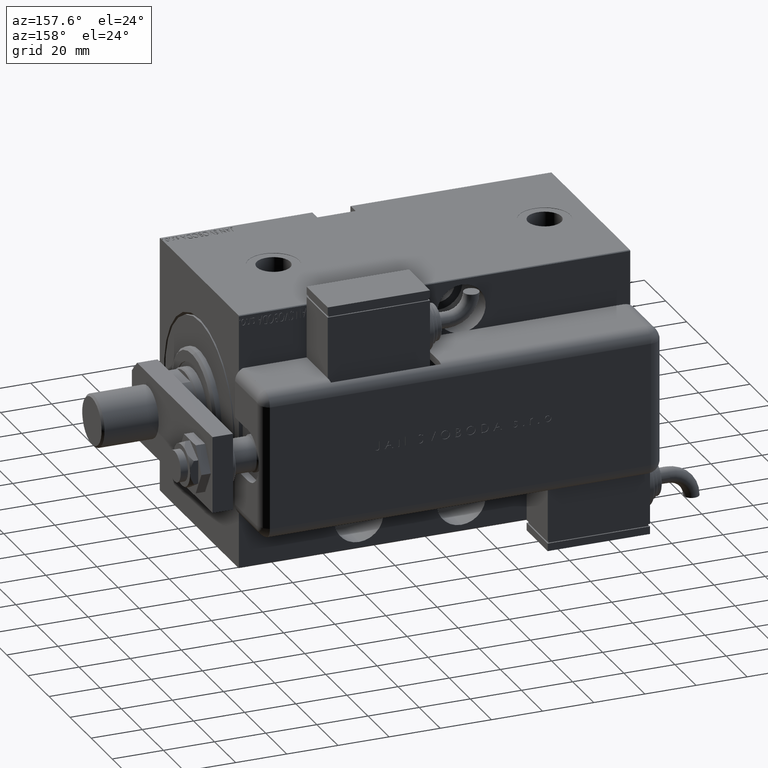
[diagram: clean part render]
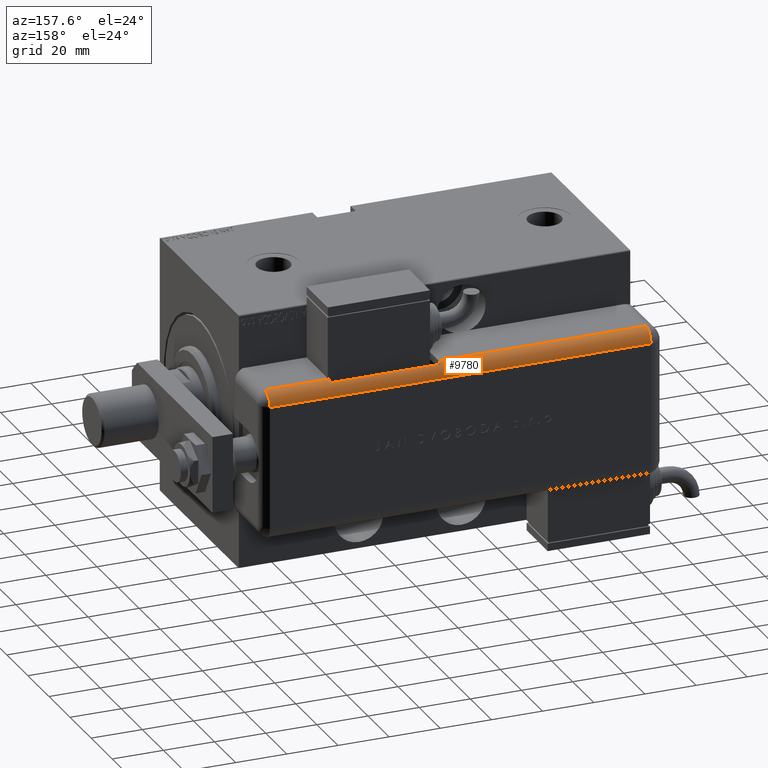
[diagram: same view with one face highlighted and labeled with its STEP entity id]
A machine part, auxiliary view. The second image highlights one B-rep face of the part: STEP entity #9780.
In plain terms, the highlighted cylindrical surface (edge-blend (fillet) strip) has radius 5 mm, axis along (-1, -0, -0).
Its self-contained STEP definition (entity closure, byte-faithful):
#481 = CARTESIAN_POINT ( 'NONE',  ( -28.99999999999999645, 20.79999999999998295, 154.0000000000000000 ) ) ;
#1604 = DIRECTION ( 'NONE',  ( -0.000000000000000000, -0.000000000000000000, 1.000000000000000000 ) ) ;
#1909 = AXIS2_PLACEMENT_3D ( 'NONE', #47829, #1604, #20132 ) ;
#2559 = VERTEX_POINT ( 'NONE', #39093 ) ;
#3241 = VERTEX_POINT ( 'NONE', #33324 ) ;
#3798 = VECTOR ( 'NONE', #35683, 1000.000000000000000 ) ;
#4779 = ORIENTED_EDGE ( 'NONE', *, *, #28059, .F. ) ;
#5673 = EDGE_CURVE ( 'NONE', #23327, #2559, #40421, .T. ) ;
#6009 = CARTESIAN_POINT ( 'NONE',  ( -23.99999999999999645, 25.79999999999998295, 154.0000000000000000 ) ) ;
#6892 = VECTOR ( 'NONE', #44728, 1000.000000000000000 ) ;
#7013 = CARTESIAN_POINT ( 'NONE',  ( -23.99999999999999645, 20.79999999999998295, 86.00000000000000000 ) ) ;
#9558 = ORIENTED_EDGE ( 'NONE', *, *, #22072, .F. ) ;
#9780 = ADVANCED_FACE ( 'NONE', ( #21237 ), #16986, .T. ) ;
#10504 = ORIENTED_EDGE ( 'NONE', *, *, #26009, .F. ) ;
#11647 = VERTEX_POINT ( 'NONE', #49249 ) ;
#11882 = LINE ( 'NONE', #49284, #6892 ) ;
#13418 = VERTEX_POINT ( 'NONE', #6009 ) ;
#13798 = CARTESIAN_POINT ( 'NONE',  ( -28.99999999999999645, 20.79999999999998295, 129.0000000000000000 ) ) ;
#14867 = DIRECTION ( 'NONE',  ( 0.000000000000000000, -0.000000000000000000, -1.000000000000000000 ) ) ;
#16242 = LINE ( 'NONE', #21691, #3798 ) ;
#16695 = DIRECTION ( 'NONE',  ( -1.000000000000000000, 0.000000000000000000, 0.000000000000000000 ) ) ;
#16986 = CYLINDRICAL_SURFACE ( 'NONE', #30897, 5.000000000000000888 ) ;
#18459 = CIRCLE ( 'NONE', #1909, 5.000000000000000888 ) ;
#20132 = DIRECTION ( 'NONE',  ( -1.000000000000000000, 0.000000000000000000, 0.000000000000000000 ) ) ;
#20419 = EDGE_CURVE ( 'NONE', #29492, #11647, #50693, .T. ) ;
#20654 = AXIS2_PLACEMENT_3D ( 'NONE', #37777, #51186, #47215 ) ;
#21237 = FACE_OUTER_BOUND ( 'NONE', #32540, .T. ) ;
#21691 = CARTESIAN_POINT ( 'NONE',  ( -28.99999999999999645, 20.79999999999998295, 154.0000000000000000 ) ) ;
#22072 = EDGE_CURVE ( 'NONE', #2559, #3241, #11882, .T. ) ;
#23327 = VERTEX_POINT ( 'NONE', #13798 ) ;
#23357 = VECTOR ( 'NONE', #36993, 1000.000000000000000 ) ;
#25207 = VECTOR ( 'NONE', #48099, 1000.000000000000000 ) ;
#26009 = EDGE_CURVE ( 'NONE', #13418, #44010, #46902, .T. ) ;
#26397 = CARTESIAN_POINT ( 'NONE',  ( -23.99999999999999645, 20.79999999999998295, 154.0000000000000000 ) ) ;
#27083 = ORIENTED_EDGE ( 'NONE', *, *, #44332, .F. ) ;
#28059 = EDGE_CURVE ( 'NONE', #3241, #29492, #28503, .T. ) ;
#28503 = CIRCLE ( 'NONE', #30446, 5.000000000000000888 ) ;
#29492 = VERTEX_POINT ( 'NONE', #31420 ) ;
#30446 = AXIS2_PLACEMENT_3D ( 'NONE', #7013, #43809, #58100 ) ;
#30897 = AXIS2_PLACEMENT_3D ( 'NONE', #26397, #39505, #16695 ) ;
#31420 = CARTESIAN_POINT ( 'NONE',  ( -28.99999999999999645, 20.79999999999998295, 86.00000000000000000 ) ) ;
#32540 = EDGE_LOOP ( 'NONE', ( #4779, #9558, #40702, #27083, #10504, #37336, #42366, #59232 ) ) ;
#33324 = CARTESIAN_POINT ( 'NONE',  ( -28.48998886412872267, 22.99999999999998934, 86.00000000000000000 ) ) ;
#35683 = DIRECTION ( 'NONE',  ( 0.000000000000000000, 0.000000000000000000, -1.000000000000000000 ) ) ;
#36993 = DIRECTION ( 'NONE',  ( 0.000000000000000000, 0.000000000000000000, -1.000000000000000000 ) ) ;
#37336 = ORIENTED_EDGE ( 'NONE', *, *, #45512, .F. ) ;
#37483 = AXIS2_PLACEMENT_3D ( 'NONE', #51384, #14867, #56528 ) ;
#37777 = CARTESIAN_POINT ( 'NONE',  ( -23.99999999999999645, 20.79999999999998295, 154.0000000000000000 ) ) ;
#39093 = CARTESIAN_POINT ( 'NONE',  ( -28.48998886412872267, 22.99999999999998934, 129.0000000000000000 ) ) ;
#39505 = DIRECTION ( 'NONE',  ( 0.000000000000000000, 0.000000000000000000, -1.000000000000000000 ) ) ;
#40421 = CIRCLE ( 'NONE', #37483, 5.000000000000000888 ) ;
#40702 = ORIENTED_EDGE ( 'NONE', *, *, #5673, .F. ) ;
#42366 = ORIENTED_EDGE ( 'NONE', *, *, #50277, .T. ) ;
#43176 = VERTEX_POINT ( 'NONE', #44280 ) ;
#43809 = DIRECTION ( 'NONE',  ( -0.000000000000000000, -0.000000000000000000, 1.000000000000000000 ) ) ;
#44010 = VERTEX_POINT ( 'NONE', #48551 ) ;
#44280 = CARTESIAN_POINT ( 'NONE',  ( -23.99999999999999645, 25.79999999999998295, 5.000000000000004441 ) ) ;
#44332 = EDGE_CURVE ( 'NONE', #44010, #23327, #16242, .T. ) ;
#44728 = DIRECTION ( 'NONE',  ( 0.000000000000000000, 0.000000000000000000, -1.000000000000000000 ) ) ;
#45512 = EDGE_CURVE ( 'NONE', #43176, #13418, #51763, .T. ) ;
#46902 = CIRCLE ( 'NONE', #20654, 5.000000000000000888 ) ;
#47215 = DIRECTION ( 'NONE',  ( -1.000000000000000000, 0.000000000000000000, 0.000000000000000000 ) ) ;
#47829 = CARTESIAN_POINT ( 'NONE',  ( -23.99999999999999645, 20.79999999999998295, 5.000000000000004441 ) ) ;
#48099 = DIRECTION ( 'NONE',  ( -0.000000000000000000, -0.000000000000000000, 1.000000000000000000 ) ) ;
#48551 = CARTESIAN_POINT ( 'NONE',  ( -28.99999999999999645, 20.79999999999998295, 154.0000000000000000 ) ) ;
#49249 = CARTESIAN_POINT ( 'NONE',  ( -28.99999999999999645, 20.79999999999998295, 5.000000000000004441 ) ) ;
#49284 = CARTESIAN_POINT ( 'NONE',  ( -28.48998886412872267, 22.99999999999998934, 154.0000000000000000 ) ) ;
#50277 = EDGE_CURVE ( 'NONE', #43176, #11647, #18459, .T. ) ;
#50693 = LINE ( 'NONE', #481, #23357 ) ;
#51186 = DIRECTION ( 'NONE',  ( -0.000000000000000000, -0.000000000000000000, 1.000000000000000000 ) ) ;
#51384 = CARTESIAN_POINT ( 'NONE',  ( -23.99999999999999645, 20.79999999999998295, 129.0000000000000000 ) ) ;
#51763 = LINE ( 'NONE', #52658, #25207 ) ;
#52658 = CARTESIAN_POINT ( 'NONE',  ( -23.99999999999999645, 25.79999999999998295, 154.0000000000000000 ) ) ;
#56528 = DIRECTION ( 'NONE',  ( 1.000000000000000000, 0.000000000000000000, 0.000000000000000000 ) ) ;
#58100 = DIRECTION ( 'NONE',  ( -1.000000000000000000, 4.163336342344336238E-15, 0.000000000000000000 ) ) ;
#59232 = ORIENTED_EDGE ( 'NONE', *, *, #20419, .F. ) ;